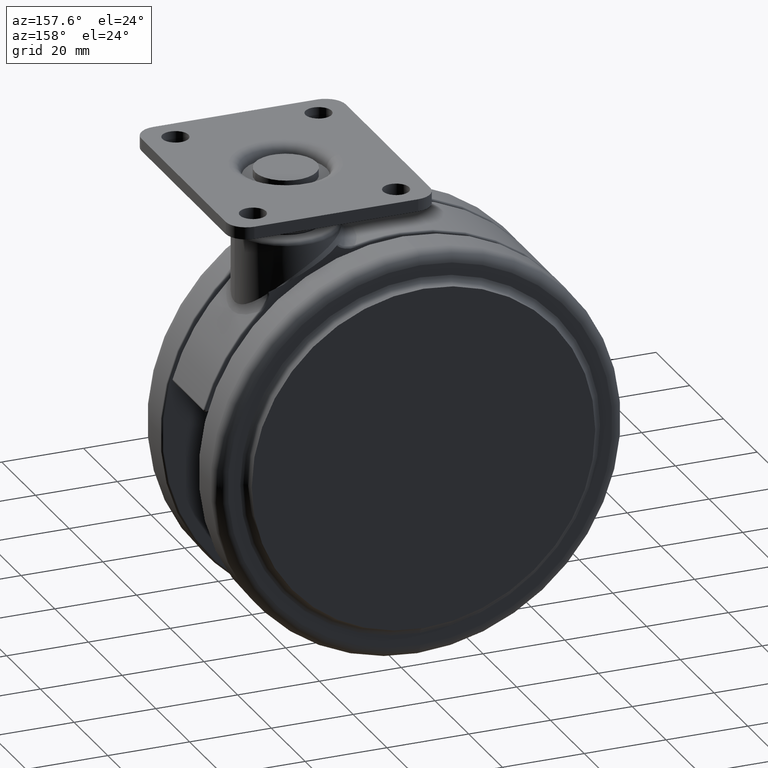
[diagram: clean part render]
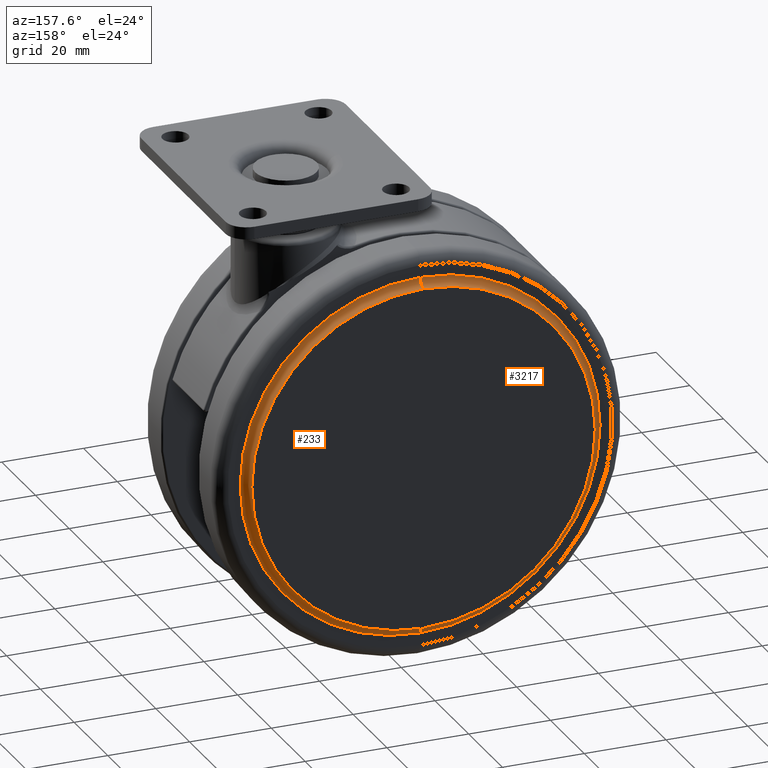
[diagram: same view with one multi-face feature highlighted, each face labeled with its STEP entity id]
A machine part, auxiliary view. The highlighted faces form ONE feature: a constant-radius fillet chain: 2 tangent blend faces with common blend radius 2.2 mm. The faces share edges in the B-rep.
Their STEP definitions:
[1] entity #3217 (Torus):
#7 = CARTESIAN_POINT ( 'NONE',  ( -24.00000000000000700, 23.69163752878144900, -9.308362471218599100 ) ) ;
#50 = AXIS2_PLACEMENT_3D ( 'NONE', #1946, #4826, #2355 ) ;
#206 = CIRCLE ( 'NONE', #2401, 2.200000000000000600 ) ;
#225 = EDGE_CURVE ( 'NONE', #4338, #4012, #2307, .T. ) ;
#447 = DIRECTION ( 'NONE',  ( -4.731064025391290900E-015, -1.000000000000000000, 0.0000000000000000000 ) ) ;
#537 = DIRECTION ( 'NONE',  ( 1.000000000000000000, -4.416915315594424900E-015, 0.0000000000000000000 ) ) ;
#817 = CARTESIAN_POINT ( 'NONE',  ( -24.00000000000000000, 23.69163752878144900, -53.50000000000000000 ) ) ;
#1270 = ORIENTED_EDGE ( 'NONE', *, *, #2740, .F. ) ;
#1277 = ORIENTED_EDGE ( 'NONE', *, *, #4372, .F. ) ;
#1430 = EDGE_CURVE ( 'NONE', #4012, #2316, #1802, .T. ) ;
#1455 = DIRECTION ( 'NONE',  ( -4.416915315594424900E-015, -1.000000000000000000, 0.0000000000000000000 ) ) ;
#1526 = AXIS2_PLACEMENT_3D ( 'NONE', #3000, #537, #3411 ) ;
#1802 = CIRCLE ( 'NONE', #1526, 2.200000000000000600 ) ;
#1946 = CARTESIAN_POINT ( 'NONE',  ( -24.00000000000000000, 21.50000000000000000, -53.50000000000000000 ) ) ;
#2307 = CIRCLE ( 'NONE', #4253, 42.00000000000000000 ) ;
#2316 = VERTEX_POINT ( 'NONE', #2827 ) ;
#2325 = CARTESIAN_POINT ( 'NONE',  ( -24.00000000000001100, 23.50000000000000000, -11.49999999999999600 ) ) ;
#2355 = DIRECTION ( 'NONE',  ( 0.0000000000000000000, 0.0000000000000000000, -1.000000000000000000 ) ) ;
#2401 = AXIS2_PLACEMENT_3D ( 'NONE', #7, #2926, #447 ) ;
#2456 = ORIENTED_EDGE ( 'NONE', *, *, #225, .T. ) ;
#2468 = DIRECTION ( 'NONE',  ( 4.416915315594424900E-015, 1.000000000000000000, 0.0000000000000000000 ) ) ;
#2740 = EDGE_CURVE ( 'NONE', #4338, #3935, #206, .T. ) ;
#2805 = AXIS2_PLACEMENT_3D ( 'NONE', #817, #2468, #5360 ) ;
#2827 = CARTESIAN_POINT ( 'NONE',  ( -24.00000000000001100, 21.50000000000000000, -97.50000000000145000 ) ) ;
#2926 = DIRECTION ( 'NONE',  ( -1.000000000000000000, 4.416915315594424900E-015, -1.224646799147353200E-016 ) ) ;
#3000 = CARTESIAN_POINT ( 'NONE',  ( -24.00000000000000000, 23.69163752878144900, -97.69163752878139900 ) ) ;
#3007 = CIRCLE ( 'NONE', #50, 44.00000000000104400 ) ;
#3207 = CARTESIAN_POINT ( 'NONE',  ( -24.00000000000000000, 23.50000000000000000, -95.50000000000000000 ) ) ;
#3217 = ADVANCED_FACE ( 'NONE', ( #4404 ), #4534, .F. ) ;
#3411 = DIRECTION ( 'NONE',  ( 4.731064025391290900E-015, 1.000000000000000000, 0.0000000000000000000 ) ) ;
#3935 = VERTEX_POINT ( 'NONE', #4788 ) ;
#3954 = CARTESIAN_POINT ( 'NONE',  ( -24.00000000000000000, 23.50000000000000000, -53.50000000000000000 ) ) ;
#4012 = VERTEX_POINT ( 'NONE', #3207 ) ;
#4253 = AXIS2_PLACEMENT_3D ( 'NONE', #3954, #1455, #4336 ) ;
#4336 = DIRECTION ( 'NONE',  ( 0.0000000000000000000, 0.0000000000000000000, -1.000000000000000000 ) ) ;
#4338 = VERTEX_POINT ( 'NONE', #2325 ) ;
#4372 = EDGE_CURVE ( 'NONE', #3935, #2316, #3007, .T. ) ;
#4404 = FACE_OUTER_BOUND ( 'NONE', #5035, .T. ) ;
#4513 = ORIENTED_EDGE ( 'NONE', *, *, #1430, .T. ) ;
#4534 = TOROIDAL_SURFACE ( 'NONE', #2805, 44.19163752878139900, 2.200000000000000200 ) ;
#4788 = CARTESIAN_POINT ( 'NONE',  ( -24.00000000000001800, 21.50000000000000000, -9.499999999998546900 ) ) ;
#4826 = DIRECTION ( 'NONE',  ( -4.416915315594424900E-015, -1.000000000000000000, 0.0000000000000000000 ) ) ;
#5035 = EDGE_LOOP ( 'NONE', ( #1270, #2456, #4513, #1277 ) ) ;
#5360 = DIRECTION ( 'NONE',  ( 0.0000000000000000000, 0.0000000000000000000, -1.000000000000000000 ) ) ;
[2] entity #233 (Torus):
#7 = CARTESIAN_POINT ( 'NONE',  ( -24.00000000000000700, 23.69163752878144900, -9.308362471218599100 ) ) ;
#10 = AXIS2_PLACEMENT_3D ( 'NONE', #2632, #145, #3054 ) ;
#69 = AXIS2_PLACEMENT_3D ( 'NONE', #2730, #230, #3138 ) ;
#145 = DIRECTION ( 'NONE',  ( 4.416915315594424900E-015, 1.000000000000000000, 0.0000000000000000000 ) ) ;
#203 = DIRECTION ( 'NONE',  ( 0.0000000000000000000, 0.0000000000000000000, -1.000000000000000000 ) ) ;
#206 = CIRCLE ( 'NONE', #2401, 2.200000000000000600 ) ;
#230 = DIRECTION ( 'NONE',  ( -4.416915315594424900E-015, -1.000000000000000000, 0.0000000000000000000 ) ) ;
#233 = ADVANCED_FACE ( 'NONE', ( #371 ), #4489, .F. ) ;
#371 = FACE_OUTER_BOUND ( 'NONE', #3990, .T. ) ;
#445 = AXIS2_PLACEMENT_3D ( 'NONE', #5162, #2699, #203 ) ;
#447 = DIRECTION ( 'NONE',  ( -4.731064025391290900E-015, -1.000000000000000000, 0.0000000000000000000 ) ) ;
#537 = DIRECTION ( 'NONE',  ( 1.000000000000000000, -4.416915315594424900E-015, 0.0000000000000000000 ) ) ;
#1049 = ORIENTED_EDGE ( 'NONE', *, *, #2096, .F. ) ;
#1333 = ORIENTED_EDGE ( 'NONE', *, *, #2740, .T. ) ;
#1430 = EDGE_CURVE ( 'NONE', #4012, #2316, #1802, .T. ) ;
#1441 = CIRCLE ( 'NONE', #445, 42.00000000000000000 ) ;
#1526 = AXIS2_PLACEMENT_3D ( 'NONE', #3000, #537, #3411 ) ;
#1797 = CIRCLE ( 'NONE', #69, 44.00000000000104400 ) ;
#1802 = CIRCLE ( 'NONE', #1526, 2.200000000000000600 ) ;
#2050 = ORIENTED_EDGE ( 'NONE', *, *, #1430, .F. ) ;
#2096 = EDGE_CURVE ( 'NONE', #2316, #3935, #1797, .T. ) ;
#2316 = VERTEX_POINT ( 'NONE', #2827 ) ;
#2325 = CARTESIAN_POINT ( 'NONE',  ( -24.00000000000001100, 23.50000000000000000, -11.49999999999999600 ) ) ;
#2401 = AXIS2_PLACEMENT_3D ( 'NONE', #7, #2926, #447 ) ;
#2632 = CARTESIAN_POINT ( 'NONE',  ( -24.00000000000000000, 23.69163752878144900, -53.50000000000000000 ) ) ;
#2699 = DIRECTION ( 'NONE',  ( -4.416915315594424900E-015, -1.000000000000000000, 0.0000000000000000000 ) ) ;
#2730 = CARTESIAN_POINT ( 'NONE',  ( -24.00000000000000000, 21.50000000000000000, -53.50000000000000000 ) ) ;
#2740 = EDGE_CURVE ( 'NONE', #4338, #3935, #206, .T. ) ;
#2827 = CARTESIAN_POINT ( 'NONE',  ( -24.00000000000001100, 21.50000000000000000, -97.50000000000145000 ) ) ;
#2926 = DIRECTION ( 'NONE',  ( -1.000000000000000000, 4.416915315594424900E-015, -1.224646799147353200E-016 ) ) ;
#3000 = CARTESIAN_POINT ( 'NONE',  ( -24.00000000000000000, 23.69163752878144900, -97.69163752878139900 ) ) ;
#3054 = DIRECTION ( 'NONE',  ( 0.0000000000000000000, 0.0000000000000000000, -1.000000000000000000 ) ) ;
#3138 = DIRECTION ( 'NONE',  ( 0.0000000000000000000, 0.0000000000000000000, -1.000000000000000000 ) ) ;
#3207 = CARTESIAN_POINT ( 'NONE',  ( -24.00000000000000000, 23.50000000000000000, -95.50000000000000000 ) ) ;
#3411 = DIRECTION ( 'NONE',  ( 4.731064025391290900E-015, 1.000000000000000000, 0.0000000000000000000 ) ) ;
#3935 = VERTEX_POINT ( 'NONE', #4788 ) ;
#3990 = EDGE_LOOP ( 'NONE', ( #4749, #1333, #1049, #2050 ) ) ;
#4012 = VERTEX_POINT ( 'NONE', #3207 ) ;
#4205 = EDGE_CURVE ( 'NONE', #4012, #4338, #1441, .T. ) ;
#4338 = VERTEX_POINT ( 'NONE', #2325 ) ;
#4489 = TOROIDAL_SURFACE ( 'NONE', #10, 44.19163752878139900, 2.200000000000000200 ) ;
#4749 = ORIENTED_EDGE ( 'NONE', *, *, #4205, .T. ) ;
#4788 = CARTESIAN_POINT ( 'NONE',  ( -24.00000000000001800, 21.50000000000000000, -9.499999999998546900 ) ) ;
#5162 = CARTESIAN_POINT ( 'NONE',  ( -24.00000000000000000, 23.50000000000000000, -53.50000000000000000 ) ) ;